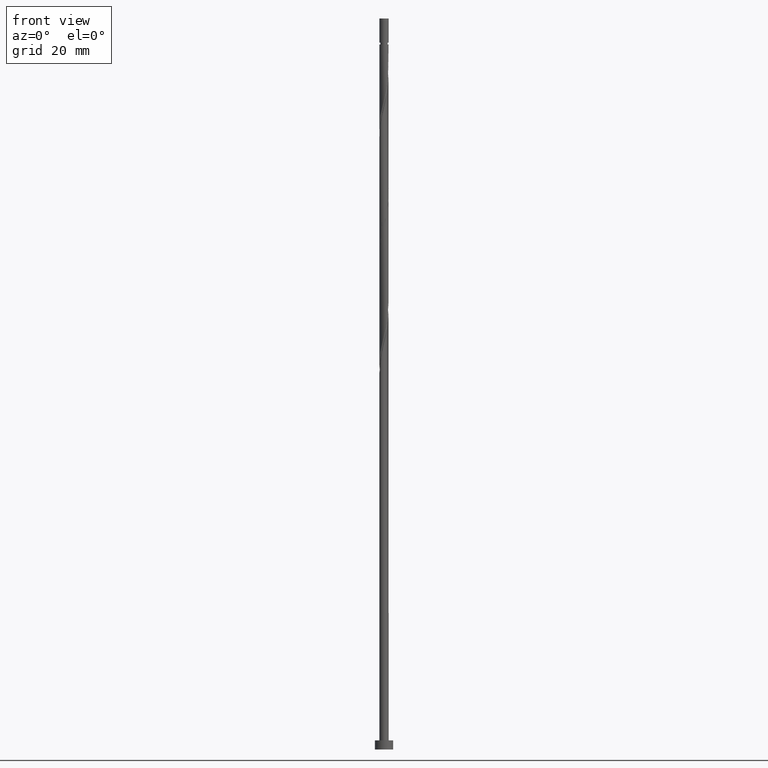
[diagram: clean part render]
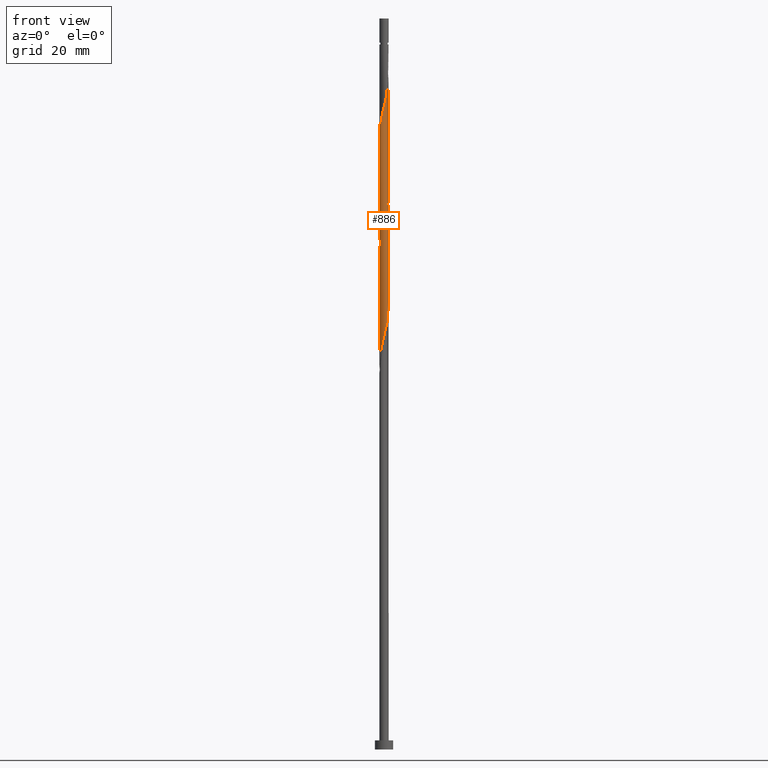
[diagram: same view with one face highlighted and labeled with its STEP entity id]
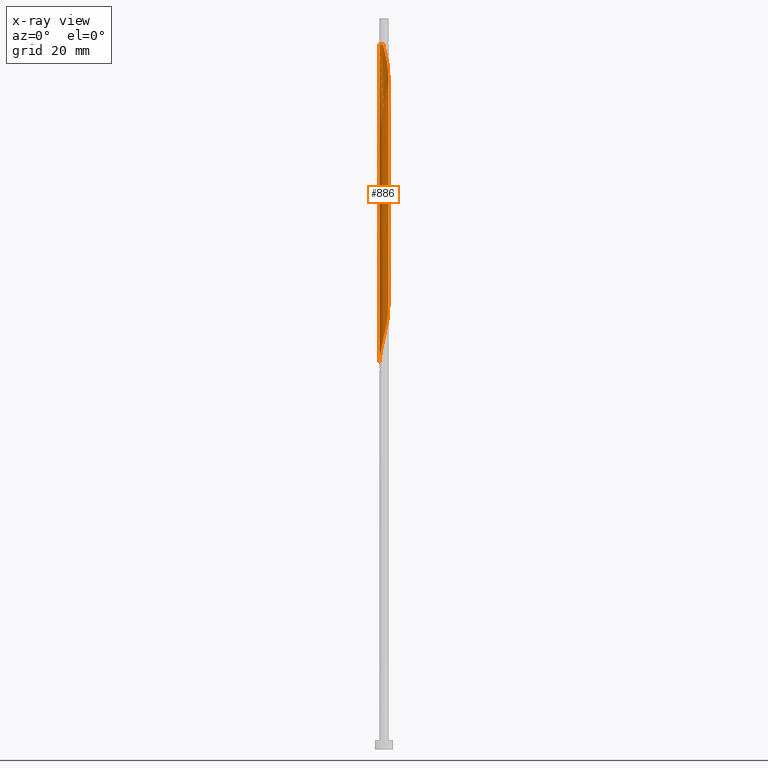
[diagram: x-ray of the same camera — body ghosted, the highlighted face saturated]
A machine part, front view. The second image highlights one B-rep face of the part: STEP entity #886.
The next image is the same camera in x-ray: the body ghosted, the highlighted face saturated — about 0% of this face is hidden behind the body in this view.
In plain terms, the highlighted cylindrical surface (bore or boss wall) has radius 1 mm, axis along (-0, -0, -1).
Its self-contained STEP definition (entity closure, byte-faithful):
#2 = CARTESIAN_POINT ( 'NONE',  ( 1.000000000000000000, 1.224646799147353207E-16, 160.0000000000000000 ) ) ;
#4 = CARTESIAN_POINT ( 'NONE',  ( 0.3399002155364028166, 0.9513884807492759554, 102.0676361405122492 ) ) ;
#10 = CARTESIAN_POINT ( 'NONE',  ( -0.08516121475689704401, 0.9963671850784392436, 129.6623331102092322 ) ) ;
#11 = CARTESIAN_POINT ( 'NONE',  ( -0.9900775620072763683, 0.2010438236649822741, 109.1130906859667959 ) ) ;
#28 = CARTESIAN_POINT ( 'NONE',  ( -0.8087728116229547792, 0.5881211942954480687, 107.3517270496031557 ) ) ;
#33 = CARTESIAN_POINT ( 'NONE',  ( -0.3399002155364028166, -0.9513884807492759554, 114.9843028071788780 ) ) ;
#37 = CARTESIAN_POINT ( 'NONE',  ( 0.9415987439861392971, 0.3661475155560030559, 124.3782422011182831 ) ) ;
#38 = VERTEX_POINT ( 'NONE', #1238 ) ;
#46 = ORIENTED_EDGE ( 'NONE', *, *, #934, .F. ) ;
#48 = ORIENTED_EDGE ( 'NONE', *, *, #1249, .F. ) ;
#70 = FACE_OUTER_BOUND ( 'NONE', #1175, .T. ) ;
#83 = DIRECTION ( 'NONE',  ( -0.000000000000000000, -0.000000000000000000, -1.000000000000000000 ) ) ;
#92 = CARTESIAN_POINT ( 'NONE',  ( -1.000000000000001110, -0.1145289273851236855, 84.57344008389712542 ) ) ;
#108 = CARTESIAN_POINT ( 'NONE',  ( 0.5941689777682086504, -0.8170896056626780757, 143.1661209889971360 ) ) ;
#114 = CARTESIAN_POINT ( 'NONE',  ( -0.8933318736010403827, 0.4718372192107816998, 133.7721815950576740 ) ) ;
#115 = CARTESIAN_POINT ( 'NONE',  ( 0.3624206617887646975, -0.9320146264456353746, 117.9199088677849829 ) ) ;
#123 = CARTESIAN_POINT ( 'NONE',  ( 0.9415987439861392971, 0.3661475155560030559, 98.54490886778492609 ) ) ;
#139 = CARTESIAN_POINT ( 'NONE',  ( -0.8709502235331725295, -0.4913712528501438803, 112.0486967465728725 ) ) ;
#141 = CARTESIAN_POINT ( 'NONE',  ( -1.000000000000001776, -0.02877552652382201967, 134.2417974345481184 ) ) ;
#161 = CARTESIAN_POINT ( 'NONE',  ( 0.3624206617887644200, 0.9320146264456350416, 151.9729391708152662 ) ) ;
#188 = CARTESIAN_POINT ( 'NONE',  ( 0.08516121475689712728, 0.9963671850784390216, 153.1471815950577025 ) ) ;
#192 = CARTESIAN_POINT ( 'NONE',  ( -0.8003017030802066500, -0.6165949901442839831, 86.80248462536070519 ) ) ;
#194 =( BOUNDED_CURVE ( )  B_SPLINE_CURVE ( 2, ( #1514, #811, #708, #1063, #949, #114, #590, #1428, #691, #1187, #601, #1071, #10, #483, #961, #1439, #357, #849, #879, #631, #741, #37, #1108, #275, #1329 ),
 .UNSPECIFIED., .F., .T. ) 
 B_SPLINE_CURVE_WITH_KNOTS ( ( 3, 2, 2, 2, 2, 2, 2, 2, 2, 2, 2, 2, 3 ),
 ( 0.4295252162417512176, 0.4318181818181818232, 0.4431818181818181768, 0.4545454545454545303, 0.4659090909090908839, 0.4772727272727272929, 0.4886363636363636465, 0.5000000000000000000, 0.5113636363636363535, 0.5227272727272727071, 0.5340909090909090606, 0.5454545454545454142, 0.5545252162417512176 ),
 .UNSPECIFIED. ) 
 CURVE ( )  GEOMETRIC_REPRESENTATION_ITEM ( )  RATIONAL_B_SPLINE_CURVE ( ( 0.9061101570135545735, 0.9072237824201367928, 0.9090909090909143897, 0.8998376744372167391, 0.9090909090909143897, 0.8998376744372167391, 0.9090909090909143897, 0.8998376744372167391, 0.9090909090909143897, 0.8998376744372167391, 0.9090909090909143897, 0.8998376744372167391, 0.9090909090909143897, 0.8998376744372167391, 0.9090909090909143897, 0.8998376744372167391, 0.9090909090909143897, 0.8998376744372167391, 0.9090909090909143897, 0.8998376744372167391, 0.9090909090909143897, 0.8998376744372167391, 0.9090909090909143897, 0.9017048011079942249, 0.9061101570135546845 ) ) 
 REPRESENTATION_ITEM ( '' )  );
#205 = CARTESIAN_POINT ( 'NONE',  ( -0.6103189422011744414, -0.7921557856826156874, 137.8820300799060874 ) ) ;
#227 = DIRECTION ( 'NONE',  ( -0.000000000000000000, -0.000000000000000000, -1.000000000000000000 ) ) ;
#228 = CARTESIAN_POINT ( 'NONE',  ( 0.1989974874213285561, -0.9800000000000006484, 141.4047573526334247 ) ) ;
#232 = CARTESIAN_POINT ( 'NONE',  ( -0.8933318736010403827, 0.4718372192107816998, 107.9388482617243454 ) ) ;
#239 = VERTEX_POINT ( 'NONE', #321 ) ;
#240 = CARTESIAN_POINT ( 'NONE',  ( -0.9415987439861390751, -0.3661475155560036665, 111.4615755344515975 ) ) ;
#248 = CARTESIAN_POINT ( 'NONE',  ( 0.8933318736010403827, -0.4718372192107816998, 120.8555149283910168 ) ) ;
#267 = CARTESIAN_POINT ( 'NONE',  ( 0.8087728116229547792, -0.5881211942954480687, 94.43506038293647009 ) ) ;
#275 = CARTESIAN_POINT ( 'NONE',  ( 1.000000000000002220, 0.1145289273851192030, 123.3234400838971112 ) ) ;
#279 = VECTOR ( 'NONE', #1041, 1000.000000000000000 ) ;
#288 =( BOUNDED_CURVE ( )  B_SPLINE_CURVE ( 2, ( #943, #1421, #850, #735, #831, #248, #1197, #626, #358, #1176, #115, #373, #1205, #1082, #494, #33, #1451, #591, #1065, #859, #139, #240, #474, #1331, #366, #11, #619, #232, #28, #503, #977, #1459, #840, #1306, #484, #1072, #710, #4, #602, #349, #950, #719, #1188, #123, #963, #1440, #509, #1467, #632, #1105, #267, #866, #1340, #747, #927, #550, #1416, #1033, #428, #1409, #1168, #1057, #437, #192, #1138, #920, #794, #92, #699 ),
 .UNSPECIFIED., .F., .T. ) 
 B_SPLINE_CURVE_WITH_KNOTS ( ( 3, 2, 2, 2, 2, 2, 2, 2, 2, 2, 2, 2, 2, 2, 2, 2, 2, 2, 2, 2, 2, 2, 2, 2, 2, 2, 2, 2, 2, 2, 2, 2, 2, 2, 3 ),
 ( 0.5545252162417512176, 0.5568181818181817677, 0.5681818181818182323, 0.5795454545454545858, 0.5909090909090909394, 0.6022727272727272929, 0.6136363636363636465, 0.6250000000000000000, 0.6363636363636363535, 0.6477272727272727071, 0.6590909090909090606, 0.6704545454545454142, 0.6818181818181817677, 0.6931818181818182323, 0.7045454545454545858, 0.7159090909090909394, 0.7272727272727272929, 0.7386363636363636465, 0.7500000000000000000, 0.7613636363636363535, 0.7727272727272727071, 0.7840909090909090606, 0.7954545454545454142, 0.8068181818181817677, 0.8181818181818182323, 0.8295454545454545858, 0.8409090909090909394, 0.8522727272727272929, 0.8636363636363636465, 0.8750000000000000000, 0.8863636363636363535, 0.8977272727272727071, 0.9090909090909090606, 0.9204545454545454142, 0.9295252162417508845 ),
 .UNSPECIFIED. ) 
 CURVE ( )  GEOMETRIC_REPRESENTATION_ITEM ( )  RATIONAL_B_SPLINE_CURVE ( ( 0.9061101570135546845, 0.9072237824201369039, 0.9090909090909143897, 0.8998376744372167391, 0.9090909090909143897, 0.8998376744372167391, 0.9090909090909143897, 0.8998376744372167391, 0.9090909090909143897, 0.8998376744372167391, 0.9090909090909143897, 0.8998376744372167391, 0.9090909090909143897, 0.8998376744372167391, 0.9090909090909143897, 0.8998376744372167391, 0.9090909090909143897, 0.8998376744372167391, 0.9090909090909143897, 0.8998376744372167391, 0.9090909090909143897, 0.8998376744372167391, 0.9090909090909143897, 0.8998376744372167391, 0.9090909090909143897, 0.8998376744372167391, 0.9090909090909143897, 0.8998376744372167391, 0.9090909090909143897, 0.8998376744372167391, 0.9090909090909143897, 0.8998376744372167391, 0.9090909090909143897, 0.8998376744372167391, 0.9090909090909143897, 0.8998376744372167391, 0.9090909090909143897, 0.8998376744372167391, 0.9090909090909143897, 0.8998376744372167391, 0.9090909090909143897, 0.8998376744372167391, 0.9090909090909143897, 0.8998376744372167391, 0.9090909090909143897, 0.8998376744372167391, 0.9090909090909143897, 0.8998376744372167391, 0.9090909090909143897, 0.8998376744372167391, 0.9090909090909143897, 0.8998376744372167391, 0.9090909090909143897, 0.8998376744372167391, 0.9090909090909143897, 0.8998376744372167391, 0.9090909090909143897, 0.8998376744372167391, 0.9090909090909143897, 0.8998376744372167391, 0.9090909090909143897, 0.8998376744372167391, 0.9090909090909143897, 0.8998376744372167391, 0.9090909090909143897, 0.8998376744372167391, 0.9090909090909143897, 0.9017048011079946690, 0.9061101570135543515 ) ) 
 REPRESENTATION_ITEM ( '' )  );
#303 = EDGE_CURVE ( 'NONE', #660, #504, #288, .T. ) ;
#321 = CARTESIAN_POINT ( 'NONE',  ( -0.9999999999999931166, 0.000000000000000000, 154.3214240193001103 ) ) ;
#349 = CARTESIAN_POINT ( 'NONE',  ( 0.5941689777682085394, 0.8170896056626779647, 100.8933937162697987 ) ) ;
#357 = CARTESIAN_POINT ( 'NONE',  ( 0.4670345966523055670, 0.8842390432059770156, 127.3138482617243739 ) ) ;
#358 = CARTESIAN_POINT ( 'NONE',  ( 0.6103189422011744414, -0.7921557856826161315, 119.0941512920274050 ) ) ;
#366 = CARTESIAN_POINT ( 'NONE',  ( -0.9983453082824713665, 0.05750343842224298757, 109.7002118980879857 ) ) ;
#369 = CARTESIAN_POINT ( 'NONE',  ( 0.7242137496448691758, 0.7044051693801138825, 150.2115755344516117 ) ) ;
#373 = CARTESIAN_POINT ( 'NONE',  ( 0.2284171888200490497, -0.9841228509061530350, 117.3327876556637364 ) ) ;
#380 = CARTESIAN_POINT ( 'NONE',  ( -0.9983453082824710334, -0.05750343842224287655, 134.3593028071788638 ) ) ;
#381 = CARTESIAN_POINT ( 'NONE',  ( 0.9741058992719026088, -0.2260922311882499480, 146.1017270496030847 ) ) ;
#388 = CARTESIAN_POINT ( 'NONE',  ( 0.6972353404242069841, -0.7168422979034808629, 143.7532422011182973 ) ) ;
#389 = EDGE_CURVE ( 'NONE', #38, #504, #903, .T. ) ;
#395 = VECTOR ( 'NONE', #1283, 1000.000000000000000 ) ;
#401 = CARTESIAN_POINT ( 'NONE',  ( -0.05809475930625744577, 1.008611519250725674, 153.7343028071789490 ) ) ;
#428 = CARTESIAN_POINT ( 'NONE',  ( -0.1989974874213288614, -0.9800000000000008704, 89.73809068596678173 ) ) ;
#437 = CARTESIAN_POINT ( 'NONE',  ( -0.6972353404242076502, -0.7168422979034808629, 87.38960583748192334 ) ) ;
#440 = CARTESIAN_POINT ( 'NONE',  ( -0.4964241347574807617, -0.8799064019851176033, 138.4691512920274192 ) ) ;
#447 = VERTEX_POINT ( 'NONE', #1042 ) ;
#449 = CARTESIAN_POINT ( 'NONE',  ( -1.000000000000000000, 0.000000000000000000, 160.0000000000000000 ) ) ;
#453 = CARTESIAN_POINT ( 'NONE',  ( -0.08516121475689701625, -0.9963671850784390216, 140.2305149283909884 ) ) ;
#474 = CARTESIAN_POINT ( 'NONE',  ( -0.9741058992719029419, -0.2260922311882499758, 110.8744543223303936 ) ) ;
#476 = ORIENTED_EDGE ( 'NONE', *, *, #954, .F. ) ;
#479 = DIRECTION ( 'NONE',  ( -1.000000000000000000, 0.000000000000000000, 0.000000000000000000 ) ) ;
#483 = CARTESIAN_POINT ( 'NONE',  ( 0.05809475930625475348, 1.008611519250725674, 129.0752118980879857 ) ) ;
#484 = CARTESIAN_POINT ( 'NONE',  ( -0.08516121475689704401, 0.9963671850784392436, 103.8289997768759036 ) ) ;
#494 = CARTESIAN_POINT ( 'NONE',  ( -0.1989974874213288614, -0.9800000000000008704, 115.5714240193001103 ) ) ;
#503 = CARTESIAN_POINT ( 'NONE',  ( -0.7242137496448688427, 0.7044051693801144376, 106.7646058374819376 ) ) ;
#504 = VERTEX_POINT ( 'NONE', #713 ) ;
#509 = CARTESIAN_POINT ( 'NONE',  ( 0.9983453082824713665, -0.05750343842224312635, 96.78354523142132848 ) ) ;
#517 = ORIENTED_EDGE ( 'NONE', *, *, #673, .F. ) ;
#518 = CIRCLE ( 'NONE', #1253, 0.9999999999999931166 ) ;
#519 = CARTESIAN_POINT ( 'NONE',  ( 0.8933318736010407157, 0.4718372192107814223, 149.0373331102092322 ) ) ;
#547 = CARTESIAN_POINT ( 'NONE',  ( -0.9417047178041579869, -0.3364405214378818343, 135.5335452314213285 ) ) ;
#550 = CARTESIAN_POINT ( 'NONE',  ( 0.2284171888200490497, -0.9841228509061530350, 91.49945432233043618 ) ) ;
#554 = DIRECTION ( 'NONE',  ( -1.000000000000000000, 0.000000000000000000, 0.000000000000000000 ) ) ;
#556 = EDGE_CURVE ( 'NONE', #239, #1005, #518, .T. ) ;
#590 = CARTESIAN_POINT ( 'NONE',  ( -0.8087728116229547792, 0.5881211942954480687, 133.1850603829365127 ) ) ;
#591 = CARTESIAN_POINT ( 'NONE',  ( -0.5941689777682085394, -0.8170896056626780757, 113.8100603829364843 ) ) ;
#596 = CARTESIAN_POINT ( 'NONE',  ( 0.000000000000000000, 0.000000000000000000, 154.3214240193001103 ) ) ;
#601 = CARTESIAN_POINT ( 'NONE',  ( -0.3624206617887646975, 0.9320146264456353746, 130.8365755344516117 ) ) ;
#602 = CARTESIAN_POINT ( 'NONE',  ( 0.4670345966523055670, 0.8842390432059770156, 101.4805149283910168 ) ) ;
#619 = CARTESIAN_POINT ( 'NONE',  ( -0.9417047178041582089, 0.3364405214378818898, 108.5259694738455778 ) ) ;
#621 = CARTESIAN_POINT ( 'NONE',  ( 0.8003017030802065390, -0.6165949901442840941, 144.3403634132395155 ) ) ;
#626 = CARTESIAN_POINT ( 'NONE',  ( 0.7242137496448690648, -0.7044051693801142155, 119.6812725041485805 ) ) ;
#631 = CARTESIAN_POINT ( 'NONE',  ( 0.8003017030802063170, 0.6165949901442842052, 125.5524846253607052 ) ) ;
#632 = CARTESIAN_POINT ( 'NONE',  ( 0.9417047178041582089, -0.3364405214378820008, 95.60930280717889218 ) ) ;
#660 = VERTEX_POINT ( 'NONE', #1325 ) ;
#673 = EDGE_CURVE ( 'NONE', #38, #1005, #1258, .T. ) ;
#691 = CARTESIAN_POINT ( 'NONE',  ( -0.6103189422011747745, 0.7921557856826160204, 132.0108179586940480 ) ) ;
#694 = CARTESIAN_POINT ( 'NONE',  ( 0.05809475930625476042, -1.008611519250725452, 140.8176361405122918 ) ) ;
#699 = CARTESIAN_POINT ( 'NONE',  ( -1.000000000000001776, -2.767011830146854185E-16, 84.10266637945619550 ) ) ;
#701 = CARTESIAN_POINT ( 'NONE',  ( 0.3399002155364025946, -0.9513884807492763995, 141.9918785647546429 ) ) ;
#708 = CARTESIAN_POINT ( 'NONE',  ( -0.9983453082824713665, 0.05750343842224298757, 135.5335452314213285 ) ) ;
#710 = CARTESIAN_POINT ( 'NONE',  ( 0.1989974874213289446, 0.9800000000000008704, 102.6547573526334531 ) ) ;
#713 = CARTESIAN_POINT ( 'NONE',  ( -1.000000000000001776, -2.767011830146854185E-16, 84.10266637945619550 ) ) ;
#719 = CARTESIAN_POINT ( 'NONE',  ( 0.8003017030802063170, 0.6165949901442842052, 99.71915129202739081 ) ) ;
#725 = CARTESIAN_POINT ( 'NONE',  ( -0.1989974874213639167, 0.9800000000002768719, 154.3214240193002240 ) ) ;
#735 = CARTESIAN_POINT ( 'NONE',  ( 0.9900775620072763683, -0.2010438236649823851, 122.0297573526334389 ) ) ;
#741 = CARTESIAN_POINT ( 'NONE',  ( 0.8709502235331725295, 0.4913712528501440469, 124.9653634132395013 ) ) ;
#747 = CARTESIAN_POINT ( 'NONE',  ( 0.4964241347574805396, -0.8799064019851177143, 92.67369674657284406 ) ) ;
#784 = CYLINDRICAL_SURFACE ( 'NONE', #1126, 1.000000000000000000 ) ;
#790 = CARTESIAN_POINT ( 'NONE',  ( -0.8933318736010406047, -0.4718372192107816443, 136.1206664435425751 ) ) ;
#794 = CARTESIAN_POINT ( 'NONE',  ( -0.9741058992719029419, -0.2260922311882499758, 85.04112098899707917 ) ) ;
#811 = CARTESIAN_POINT ( 'NONE',  ( -1.000000000000001776, 0.02877552652382531564, 135.6510506040520738 ) ) ;
#831 = CARTESIAN_POINT ( 'NONE',  ( 0.9417047178041582089, -0.3364405214378820008, 121.4426361405122350 ) ) ;
#840 = CARTESIAN_POINT ( 'NONE',  ( -0.3624206617887646975, 0.9320146264456353746, 105.0032422011183115 ) ) ;
#849 = CARTESIAN_POINT ( 'NONE',  ( 0.5941689777682085394, 0.8170896056626779647, 126.7267270496031699 ) ) ;
#850 = CARTESIAN_POINT ( 'NONE',  ( 0.9983453082824713665, -0.05750343842224312635, 122.6168785647546429 ) ) ;
#859 = CARTESIAN_POINT ( 'NONE',  ( -0.8003017030802066500, -0.6165949901442839831, 112.6358179586940480 ) ) ;
#860 = ORIENTED_EDGE ( 'NONE', *, *, #303, .F. ) ;
#861 = CARTESIAN_POINT ( 'NONE',  ( 0.6103189422011744414, 0.7921557856826159094, 150.7986967465728299 ) ) ;
#866 = CARTESIAN_POINT ( 'NONE',  ( 0.7242137496448690648, -0.7044051693801142155, 93.84793917081526615 ) ) ;
#868 = CARTESIAN_POINT ( 'NONE',  ( 0.9983453082824710334, 0.05750343842224273777, 147.2759694738454641 ) ) ;
#875 = CARTESIAN_POINT ( 'NONE',  ( 1.006613054557666587, -0.08603694682049656262, 146.6888482617243312 ) ) ;
#879 = CARTESIAN_POINT ( 'NONE',  ( 0.6972353404242073172, 0.7168422979034810849, 126.1396058374819091 ) ) ;
#886 = ADVANCED_FACE ( 'NONE', ( #70 ), #784, .T. ) ;
#887 = CARTESIAN_POINT ( 'NONE',  ( -0.1989974874213639167, 0.9800000000002768719, 154.3214240193002240 ) ) ;
#903 = LINE ( 'NONE', #449, #395 ) ;
#918 = CARTESIAN_POINT ( 'NONE',  ( -1.000000000000000000, 0.000000000000000000, 160.0000000000000000 ) ) ;
#920 = CARTESIAN_POINT ( 'NONE',  ( -0.9415987439861390751, -0.3661475155560036665, 85.62824220111828311 ) ) ;
#927 = CARTESIAN_POINT ( 'NONE',  ( 0.3624206617887646975, -0.9320146264456353746, 92.08657553445161170 ) ) ;
#934 = EDGE_CURVE ( 'NONE', #239, #447, #1508, .T. ) ;
#943 = CARTESIAN_POINT ( 'NONE',  ( 1.000000000000001776, 7.478410351748253822E-17, 122.8526663794561671 ) ) ;
#949 = CARTESIAN_POINT ( 'NONE',  ( -0.9417047178041582089, 0.3364405214378818898, 134.3593028071789206 ) ) ;
#950 = CARTESIAN_POINT ( 'NONE',  ( 0.6972353404242073172, 0.7168422979034810849, 100.3062725041485805 ) ) ;
#952 = VERTEX_POINT ( 'NONE', #1281 ) ;
#954 = EDGE_CURVE ( 'NONE', #952, #660, #1287, .T. ) ;
#961 = CARTESIAN_POINT ( 'NONE',  ( 0.1989974874213289446, 0.9800000000000008704, 128.4880906859667959 ) ) ;
#962 = ORIENTED_EDGE ( 'NONE', *, *, #954, .T. ) ;
#963 = CARTESIAN_POINT ( 'NONE',  ( 0.9741058992719029419, 0.2260922311882496705, 97.95778765566372215 ) ) ;
#977 = CARTESIAN_POINT ( 'NONE',  ( -0.6103189422011747745, 0.7921557856826160204, 106.1774846253607052 ) ) ;
#979 = CARTESIAN_POINT ( 'NONE',  ( 0.9415987439861390751, -0.3661475155560033334, 145.5146058374819518 ) ) ;
#1005 = VERTEX_POINT ( 'NONE', #725 ) ;
#1033 = CARTESIAN_POINT ( 'NONE',  ( -0.05809475930625503104, -1.008611519250725896, 90.32521189808799988 ) ) ;
#1041 = DIRECTION ( 'NONE',  ( -0.000000000000000000, -0.000000000000000000, -1.000000000000000000 ) ) ;
#1042 = CARTESIAN_POINT ( 'NONE',  ( -1.000000000000001776, -2.767011830146854185E-16, 135.7693330461228527 ) ) ;
#1057 = CARTESIAN_POINT ( 'NONE',  ( -0.5941689777682085394, -0.8170896056626780757, 87.97672704960312728 ) ) ;
#1063 = CARTESIAN_POINT ( 'NONE',  ( -0.9900775620072763683, 0.2010438236649822741, 134.9464240193001672 ) ) ;
#1065 = CARTESIAN_POINT ( 'NONE',  ( -0.6972353404242076502, -0.7168422979034808629, 113.2229391708152662 ) ) ;
#1071 = CARTESIAN_POINT ( 'NONE',  ( -0.2284171888200489109, 0.9841228509061530350, 130.2494543223303651 ) ) ;
#1072 = CARTESIAN_POINT ( 'NONE',  ( 0.05809475930625475348, 1.008611519250725674, 103.2418785647546429 ) ) ;
#1082 = CARTESIAN_POINT ( 'NONE',  ( -0.05809475930625503104, -1.008611519250725896, 116.1585452314213285 ) ) ;
#1092 = CARTESIAN_POINT ( 'NONE',  ( 0.8709502235331723075, -0.4913712528501438248, 144.9274846253607336 ) ) ;
#1105 = CARTESIAN_POINT ( 'NONE',  ( 0.8933318736010403827, -0.4718372192107816998, 95.02218159505767403 ) ) ;
#1108 = CARTESIAN_POINT ( 'NONE',  ( 0.9741058992719029419, 0.2260922311882496705, 123.7911209889970792 ) ) ;
#1126 = AXIS2_PLACEMENT_3D ( 'NONE', #1255, #83, #554 ) ;
#1138 = CARTESIAN_POINT ( 'NONE',  ( -0.8709502235331725295, -0.4913712528501438803, 86.21536341323952968 ) ) ;
#1158 = CARTESIAN_POINT ( 'NONE',  ( -0.3624206617887647530, -0.9320146264456350416, 139.0562725041485521 ) ) ;
#1167 = DIRECTION ( 'NONE',  ( -0.000000000000000000, -0.000000000000000000, -1.000000000000000000 ) ) ;
#1168 = CARTESIAN_POINT ( 'NONE',  ( -0.4670345966523055115, -0.8842390432059770156, 88.56384826172434543 ) ) ;
#1171 = CARTESIAN_POINT ( 'NONE',  ( 0.4670345966523052339, -0.8842390432059767935, 142.5789997768758894 ) ) ;
#1175 = EDGE_LOOP ( 'NONE', ( #46, #1212, #517, #1196, #860, #476, #962, #48 ) ) ;
#1176 = CARTESIAN_POINT ( 'NONE',  ( 0.4964241347574805396, -0.8799064019851177143, 118.5070300799061584 ) ) ;
#1187 = CARTESIAN_POINT ( 'NONE',  ( -0.4964241347574806507, 0.8799064019851177143, 131.4236967465728299 ) ) ;
#1188 = CARTESIAN_POINT ( 'NONE',  ( 0.8709502235331725295, 0.4913712528501440469, 99.13203007990617266 ) ) ;
#1196 = ORIENTED_EDGE ( 'NONE', *, *, #389, .T. ) ;
#1197 = CARTESIAN_POINT ( 'NONE',  ( 0.8087728116229547792, -0.5881211942954480687, 120.2683937162698129 ) ) ;
#1205 = CARTESIAN_POINT ( 'NONE',  ( 0.08516121475689675258, -0.9963671850784392436, 116.7456664435425608 ) ) ;
#1212 = ORIENTED_EDGE ( 'NONE', *, *, #556, .T. ) ;
#1214 = CARTESIAN_POINT ( 'NONE',  ( 0.9417047178041579869, 0.3364405214378816122, 148.4502118980879288 ) ) ;
#1238 = CARTESIAN_POINT ( 'NONE',  ( -1.000000000000001554, 3.664421072356603130E-16, 134.1235149924773395 ) ) ;
#1249 = EDGE_CURVE ( 'NONE', #447, #660, #194, .T. ) ;
#1253 = AXIS2_PLACEMENT_3D ( 'NONE', #596, #227, #479 ) ;
#1254 = CARTESIAN_POINT ( 'NONE',  ( -0.9900775620072764793, -0.2010438236649822186, 134.9464240193001672 ) ) ;
#1255 = CARTESIAN_POINT ( 'NONE',  ( 0.000000000000000000, 0.000000000000000000, 160.0000000000000000 ) ) ;
#1258 =( BOUNDED_CURVE ( )  B_SPLINE_CURVE ( 2, ( #1452, #141, #380, #1254, #547, #790, #1395, #1269, #205, #440, #1158, #1291, #453, #694, #228, #701, #1171, #108, #388, #621, #1092, #979, #381, #875, #868, #1461, #1214, #519, #1454, #369, #861, #1335, #161, #1396, #188, #401, #887 ),
 .UNSPECIFIED., .F., .T. ) 
 B_SPLINE_CURVE_WITH_KNOTS ( ( 3, 2, 2, 2, 2, 2, 2, 2, 2, 2, 2, 2, 2, 2, 2, 2, 2, 2, 3 ),
 ( 0.5545252162417509956, 0.5568181818181818787, 0.5681818181818181213, 0.5795454545454545858, 0.5909090909090908283, 0.6022727272727272929, 0.6136363636363637575, 0.6250000000000001110, 0.6363636363636364646, 0.6477272727272728181, 0.6590909090909092827, 0.6704545454545455252, 0.6818181818181819898, 0.6931818181818183433, 0.7045454545454548079, 0.7159090909090910504, 0.7272727272727275150, 0.7386363636363638685, 0.7500000000000002220 ),
 .UNSPECIFIED. ) 
 CURVE ( )  GEOMETRIC_REPRESENTATION_ITEM ( )  RATIONAL_B_SPLINE_CURVE ( ( 0.9061101570135646766, 0.9072237824201468959, 0.9090909090909247148, 0.8998376744372268421, 0.9090909090909247148, 0.8998376744372268421, 0.9090909090909247148, 0.8998376744372268421, 0.9090909090909247148, 0.8998376744372268421, 0.9090909090909247148, 0.8998376744372268421, 0.9090909090909247148, 0.8998376744372268421, 0.9090909090909247148, 0.8998376744372268421, 0.9090909090909247148, 0.8998376744372268421, 0.9090909090909247148, 0.8998376744372268421, 0.9090909090909247148, 0.8998376744372268421, 0.9090909090909247148, 0.8998376744372268421, 0.9090909090909247148, 0.8998376744372268421, 0.9090909090909247148, 0.8998376744372268421, 0.9090909090909247148, 0.8998376744372268421, 0.9090909090909247148, 0.8998376744372268421, 0.9090909090909247148, 0.8998376744372268421, 0.9090909090909247148, 0.8998376744372266201, 0.9090909090909249368 ) ) 
 REPRESENTATION_ITEM ( '' )  );
#1269 = CARTESIAN_POINT ( 'NONE',  ( -0.7242137496448689538, -0.7044051693801141045, 137.2949088677849829 ) ) ;
#1281 = CARTESIAN_POINT ( 'NONE',  ( 1.000000000000000000, 1.224646799147353207E-16, 154.3214240193002240 ) ) ;
#1283 = DIRECTION ( 'NONE',  ( -0.000000000000000000, -0.000000000000000000, -1.000000000000000000 ) ) ;
#1287 = LINE ( 'NONE', #2, #1356 ) ;
#1291 = CARTESIAN_POINT ( 'NONE',  ( -0.2284171888200488831, -0.9841228509061530350, 139.6433937162697987 ) ) ;
#1306 = CARTESIAN_POINT ( 'NONE',  ( -0.2284171888200489109, 0.9841228509061530350, 104.4161209889970934 ) ) ;
#1325 = CARTESIAN_POINT ( 'NONE',  ( 1.000000000000001776, 7.478410351748253822E-17, 122.8526663794561671 ) ) ;
#1329 = CARTESIAN_POINT ( 'NONE',  ( 1.000000000000001776, 7.478410351748253822E-17, 122.8526663794561671 ) ) ;
#1331 = CARTESIAN_POINT ( 'NONE',  ( -1.006613054557666809, -0.08603694682049657649, 110.2873331102091896 ) ) ;
#1335 = CARTESIAN_POINT ( 'NONE',  ( 0.4964241347574804286, 0.8799064019851177143, 151.3858179586941617 ) ) ;
#1340 = CARTESIAN_POINT ( 'NONE',  ( 0.6103189422011744414, -0.7921557856826161315, 93.26081795869401958 ) ) ;
#1356 = VECTOR ( 'NONE', #1167, 1000.000000000000000 ) ;
#1395 = CARTESIAN_POINT ( 'NONE',  ( -0.8087728116229545572, -0.5881211942954476246, 136.7077876556636795 ) ) ;
#1396 = CARTESIAN_POINT ( 'NONE',  ( 0.2284171888200490219, 0.9841228509061530350, 152.5600603829364843 ) ) ;
#1409 = CARTESIAN_POINT ( 'NONE',  ( -0.3399002155364028166, -0.9513884807492759554, 89.15096947384556358 ) ) ;
#1416 = CARTESIAN_POINT ( 'NONE',  ( 0.08516121475689675258, -0.9963671850784392436, 90.91233311020920382 ) ) ;
#1421 = CARTESIAN_POINT ( 'NONE',  ( 1.000000000000001776, -0.02877552652382618301, 122.7343839373853882 ) ) ;
#1428 = CARTESIAN_POINT ( 'NONE',  ( -0.7242137496448688427, 0.7044051693801144376, 132.5979391708152093 ) ) ;
#1439 = CARTESIAN_POINT ( 'NONE',  ( 0.3399002155364028166, 0.9513884807492759554, 127.9009694738455494 ) ) ;
#1440 = CARTESIAN_POINT ( 'NONE',  ( 1.006613054557666809, 0.08603694682049624343, 97.37066644354253242 ) ) ;
#1451 = CARTESIAN_POINT ( 'NONE',  ( -0.4670345966523055115, -0.8842390432059770156, 114.3971815950577025 ) ) ;
#1452 = CARTESIAN_POINT ( 'NONE',  ( -1.000000000000001554, 3.664421072356603130E-16, 134.1235149924773395 ) ) ;
#1454 = CARTESIAN_POINT ( 'NONE',  ( 0.8087728116229546682, 0.5881211942954475136, 149.6244543223303651 ) ) ;
#1459 = CARTESIAN_POINT ( 'NONE',  ( -0.4964241347574806507, 0.8799064019851177143, 105.5903634132395013 ) ) ;
#1461 = CARTESIAN_POINT ( 'NONE',  ( 0.9900775620072764793, 0.2010438236649821075, 147.8630906859667959 ) ) ;
#1467 = CARTESIAN_POINT ( 'NONE',  ( 0.9900775620072763683, -0.2010438236649823851, 96.19642401930012454 ) ) ;
#1508 = LINE ( 'NONE', #918, #279 ) ;
#1514 = CARTESIAN_POINT ( 'NONE',  ( -1.000000000000001776, -2.767011830146854185E-16, 135.7693330461228527 ) ) ;